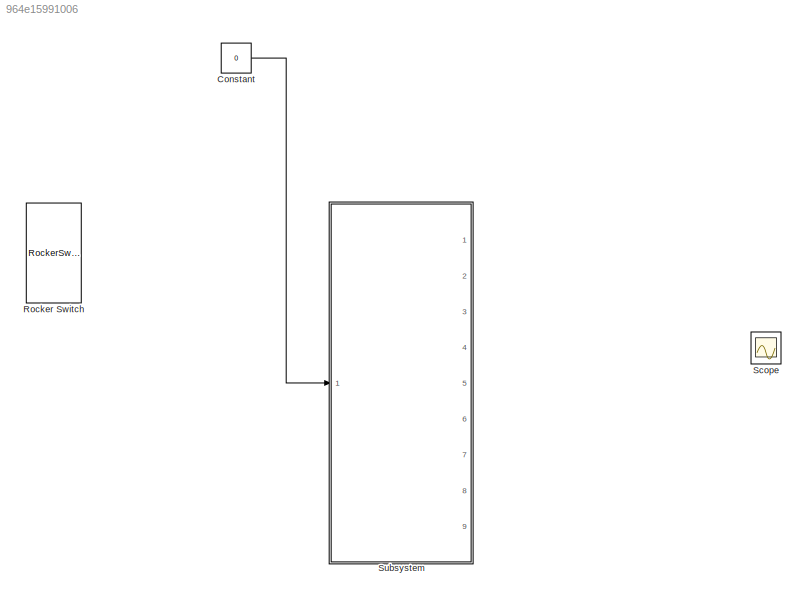
MODEL slx_964e15991006
KIND model
CONFIG AbsTol = auto
CONFIG EnableMultiTasking = off
CONFIG FixedStep = auto
CONFIG MaxStep = auto
CONFIG MinStep = auto
CONFIG RelTol = 1e-3
CONFIG SampleTimeConstraint = Unconstrained
CONFIG Solver = VariableStepAuto
CONFIG SolverName = VariableStepAuto
CONFIG StartTime = 0.0
CONFIG StopTime = 10.0
BLOCK [Constant] Constant
  Value = 0
BLOCK [RockerSwitchBlock] Rocker Switch
BLOCK [Scope] Scope
  Floating = off
  NumInputPorts = 1
  Ports = [1]
  ScopeSpecificationString = Simulink.scopes.TimeScopeBlockCfg('CurrentConfiguration', extmgr.ConfigurationSet(extmgr.Configuration('Core','General UI',true),extmgr.Configuration('Core','Source UI',true),extmgr.Configuration('Sources','WiredSimulink',true),extmgr.Configuration('Visuals','Time Domain',true),extmgr.Configuration('Tools','Plot Navigation',true),extmgr.Configuration('Tools','Measurements',true)),'Version','2020a'...<+1ch>
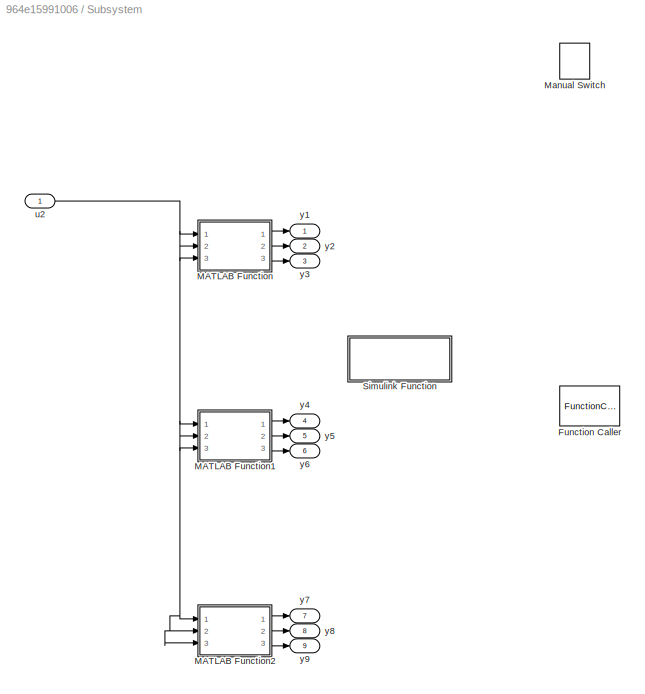
BLOCK [SubSystem] Subsystem
  Ports = [1, 9]
  RequestExecContextInheritance = off
BLOCK [FunctionCaller] Subsystem/Function Caller
  FunctionPrototype = y = f(u)
  InputArgumentSpecifications = <Enter example>
  OutputArgumentSpecifications = <Enter example>
  Ports = [1, 1]
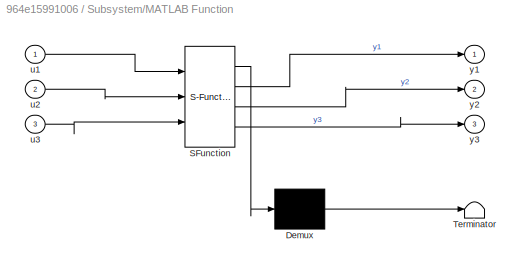
BLOCK [SubSystem] Subsystem/MATLAB Function
  ErrorFcn = Stateflow.Translate.translate
  PermitHierarchicalResolution = ExplicitOnly
  Ports = [3, 3]
  RequestExecContextInheritance = off
  SFBlockType = MATLAB Function
  TreatAsAtomicUnit = on
BLOCK [Demux] Subsystem/MATLAB Function/ Demux 
  Outputs = 1
  Ports = [1, 1]
BLOCK [S-Function] Subsystem/MATLAB Function/ SFunction 
  EnableBusSupport = on
  FunctionName = sf_sfun
  PortCounts = [3 4]
  Ports = [3, 4]
  SFcnIsStateOwnerBlock = off
  SFunctionDeploymentMode = off
  Tag = Stateflow S-Function 2
BLOCK [Terminator] Subsystem/MATLAB Function/ Terminator 
BLOCK [Inport] Subsystem/MATLAB Function/u1
BLOCK [Inport] Subsystem/MATLAB Function/u2
  Port = 2
BLOCK [Inport] Subsystem/MATLAB Function/u3
  Port = 3
BLOCK [Outport] Subsystem/MATLAB Function/y1
BLOCK [Outport] Subsystem/MATLAB Function/y2
  Port = 2
BLOCK [Outport] Subsystem/MATLAB Function/y3
  Port = 3
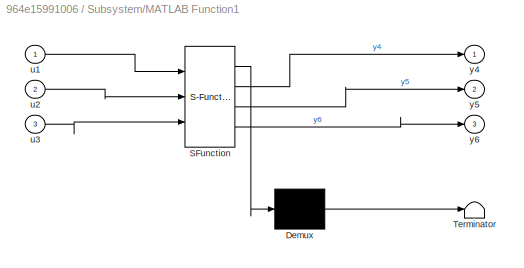
BLOCK [SubSystem] Subsystem/MATLAB Function1
  ErrorFcn = Stateflow.Translate.translate
  PermitHierarchicalResolution = ExplicitOnly
  Ports = [3, 3]
  RequestExecContextInheritance = off
  SFBlockType = MATLAB Function
  TreatAsAtomicUnit = on
BLOCK [Demux] Subsystem/MATLAB Function1/ Demux 
  Outputs = 1
  Ports = [1, 1]
BLOCK [S-Function] Subsystem/MATLAB Function1/ SFunction 
  EnableBusSupport = on
  FunctionName = sf_sfun
  PortCounts = [3 4]
  Ports = [3, 4]
  SFcnIsStateOwnerBlock = off
  SFunctionDeploymentMode = off
  Tag = Stateflow S-Function 1
BLOCK [Terminator] Subsystem/MATLAB Function1/ Terminator 
BLOCK [Inport] Subsystem/MATLAB Function1/u1
BLOCK [Inport] Subsystem/MATLAB Function1/u2
  Port = 2
BLOCK [Inport] Subsystem/MATLAB Function1/u3
  Port = 3
BLOCK [Outport] Subsystem/MATLAB Function1/y4
BLOCK [Outport] Subsystem/MATLAB Function1/y5
  Port = 2
BLOCK [Outport] Subsystem/MATLAB Function1/y6
  Port = 3
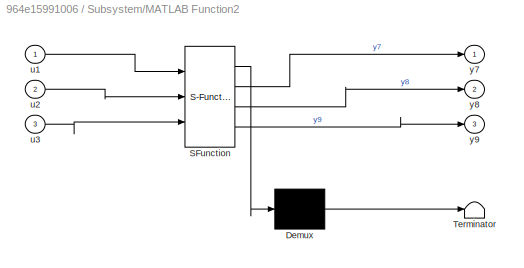
BLOCK [SubSystem] Subsystem/MATLAB Function2
  ErrorFcn = Stateflow.Translate.translate
  PermitHierarchicalResolution = ExplicitOnly
  Ports = [3, 3]
  RequestExecContextInheritance = off
  SFBlockType = MATLAB Function
  TreatAsAtomicUnit = on
BLOCK [Demux] Subsystem/MATLAB Function2/ Demux 
  Outputs = 1
  Ports = [1, 1]
BLOCK [S-Function] Subsystem/MATLAB Function2/ SFunction 
  EnableBusSupport = on
  FunctionName = sf_sfun
  PortCounts = [3 4]
  Ports = [3, 4]
  SFcnIsStateOwnerBlock = off
  SFunctionDeploymentMode = off
  Tag = Stateflow S-Function 3
BLOCK [Terminator] Subsystem/MATLAB Function2/ Terminator 
BLOCK [Inport] Subsystem/MATLAB Function2/u1
BLOCK [Inport] Subsystem/MATLAB Function2/u2
  Port = 2
BLOCK [Inport] Subsystem/MATLAB Function2/u3
  Port = 3
BLOCK [Outport] Subsystem/MATLAB Function2/y7
BLOCK [Outport] Subsystem/MATLAB Function2/y8
  Port = 2
BLOCK [Outport] Subsystem/MATLAB Function2/y9
  Port = 3
BLOCK [ManualSwitch] Subsystem/Manual Switch
  CurrentSetting = 0
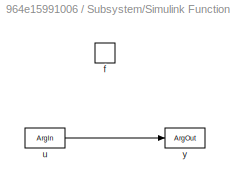
BLOCK [SubSystem] Subsystem/Simulink Function
  Ports = [0, 0, 0, 1]
  RequestExecContextInheritance = off
  TreatAsAtomicUnit = on
BLOCK [TriggerPort] Subsystem/Simulink Function/f
  FunctionName = f
  FunctionVisibility = scoped
  IsSimulinkFunction = on
  Ports = []
  StatesWhenEnabling = held
  TriggerType = function-call
  VariantControl = (inherit)
BLOCK [ArgIn] Subsystem/Simulink Function/u
  ArgumentName = u
  DisableCoverage = on
BLOCK [ArgOut] Subsystem/Simulink Function/y
  ArgumentName = y
  DisableCoverage = on
BLOCK [Inport] Subsystem/u2
BLOCK [Outport] Subsystem/y1
BLOCK [Outport] Subsystem/y2
  Port = 2
BLOCK [Outport] Subsystem/y3
  Port = 3
BLOCK [Outport] Subsystem/y4
  Port = 4
BLOCK [Outport] Subsystem/y5
  Port = 5
BLOCK [Outport] Subsystem/y6
  Port = 6
BLOCK [Outport] Subsystem/y7
  Port = 7
BLOCK [Outport] Subsystem/y8
  Port = 8
BLOCK [Outport] Subsystem/y9
  Port = 9
LINE Constant:1 -> Subsystem:1
LINE Subsystem/MATLAB Function1:1 -> Subsystem/y4:1
LINE Subsystem/MATLAB Function1:2 -> Subsystem/y5:1
LINE Subsystem/MATLAB Function1:3 -> Subsystem/y6:1
LINE Subsystem/MATLAB Function2:1 -> Subsystem/y7:1
LINE Subsystem/MATLAB Function2:2 -> Subsystem/y8:1
LINE Subsystem/MATLAB Function2:3 -> Subsystem/y9:1
LINE Subsystem/MATLAB Function:1 -> Subsystem/y1:1
LINE Subsystem/MATLAB Function:2 -> Subsystem/y2:1
LINE Subsystem/MATLAB Function:3 -> Subsystem/y3:1
LINE Subsystem/Simulink Function/u:1 -> Subsystem/Simulink Function/y:1
NET Subsystem/u2:1 -> Subsystem/MATLAB Function1:1, Subsystem/MATLAB Function1:2, Subsystem/MATLAB Function1:3, Subsystem/MATLAB Function2:1, Subsystem/MATLAB Function2:2, Subsystem/MATLAB Function2:3, Subsystem/MATLAB Function:1, Subsystem/MATLAB Function:2, Subsystem/MATLAB Function:3
note: NET lines group one-source signal fan-out (src -> all destinations, sorted); 1:1 wires keep LINE
CHART Subsystem/MATLAB Function1 states=1 transitions=1
  STATE_LABEL 'eML_blk_kernel()'
  STATE_LABEL 'SCRIPT:\nfunction [y4, y5, y6] = fcn2(u1, u2, u3)\n    \nif (u1 == 1 && u3 == 1)\n    y4 = 1;\n    y5 = 0;\n    y6 = 1;\nelse \n    y4 = 0;\n    y5 = 0;\n    y6 = 0;\nend\nend'
CHART Subsystem/MATLAB Function states=1 transitions=1
  STATE_LABEL 'eML_blk_kernel()'
  STATE_LABEL 'SCRIPT:\nfunction [y1, y2, y3] = fcn1(u1, u2, u3)\n\nif (u2 == 1 && u3 == 1)\n    y1 = 0;\n    y2 = 1;\n    y3 = 1;\nelse \n    y1 = 0;\n    y2 = 0;\n    y3 = 0;\nend\nend'
CHART Subsystem/MATLAB Function2 states=1 transitions=1
  STATE_LABEL 'eML_blk_kernel()'
  STATE_LABEL 'SCRIPT:\nfunction [y7, y8, y9] = fcn3(u1, u2, u3)\n\nif (u1 == 1 && u2 == 1)\n    y7 = 1;\n    y8 = 1; \n    y9 = 0;\n\nelse \n    y7 = 0;\n    y8 = 0;\n    y9 = 0;\nend\nend'
CHART  states=0 transitions=0
CHART  states=0 transitions=0
CHART  states=0 transitions=0
